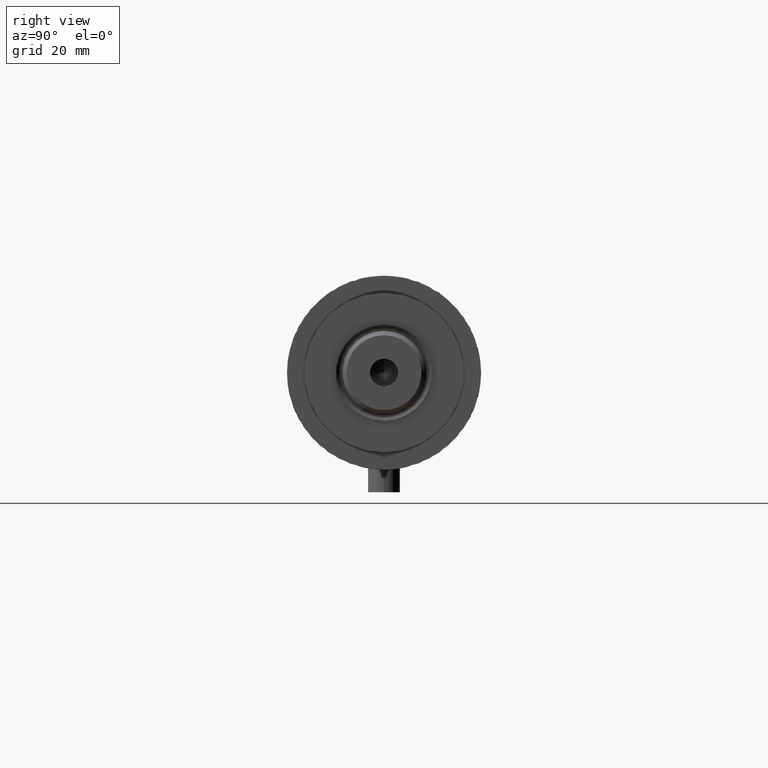
[diagram: clean part render]
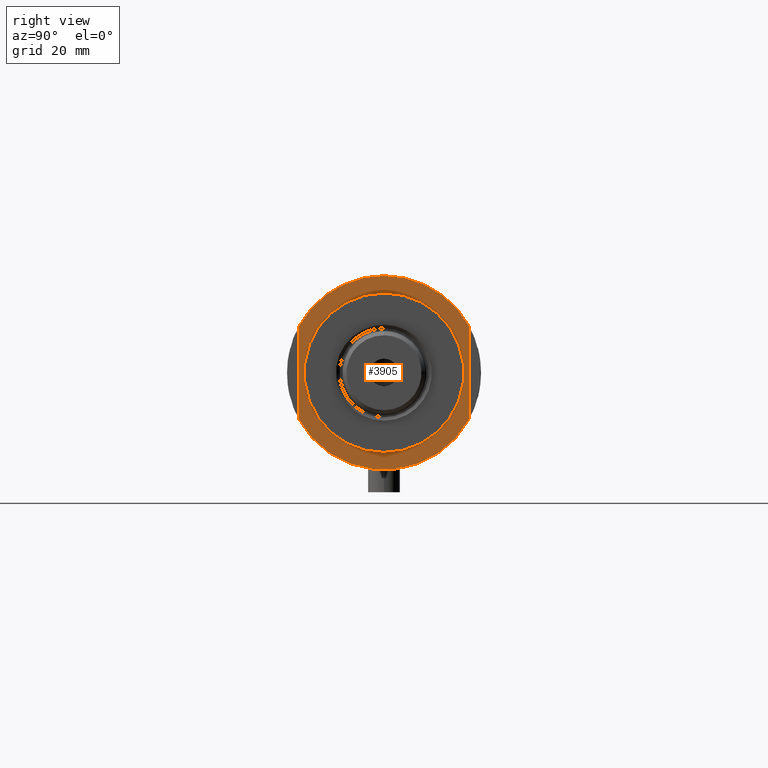
[diagram: same view with one face highlighted and labeled with its STEP entity id]
A machine part, right view. The second image highlights one B-rep face of the part: STEP entity #3905.
In plain terms, the highlighted planar face has unit normal (1, 0, -0).
Its self-contained STEP definition (entity closure, byte-faithful):
#27 = ORIENTED_EDGE ( 'NONE', *, *, #574, .T. ) ;
#46 = CARTESIAN_POINT ( 'NONE',  ( -36.50000000000000000, 0.000000000000000000, 25.19999999999999929 ) ) ;
#189 = ORIENTED_EDGE ( 'NONE', *, *, #1477, .T. ) ;
#274 = CARTESIAN_POINT ( 'NONE',  ( 0.000000000000000000, 0.000000000000000000, 25.19999999999999929 ) ) ;
#366 = CARTESIAN_POINT ( 'NONE',  ( 0.000000000000000000, 0.000000000000000000, 25.19999999999999929 ) ) ;
#506 = DIRECTION ( 'NONE',  ( -0.000000000000000000, -0.000000000000000000, -1.000000000000000000 ) ) ;
#538 = FACE_BOUND ( 'NONE', #649, .T. ) ;
#546 = EDGE_CURVE ( 'NONE', #3397, #3412, #4195, .T. ) ;
#574 = EDGE_CURVE ( 'NONE', #3397, #856, #3943, .T. ) ;
#639 = VERTEX_POINT ( 'NONE', #2262 ) ;
#649 = EDGE_LOOP ( 'NONE', ( #189, #2937 ) ) ;
#674 = DIRECTION ( 'NONE',  ( -1.000000000000000000, -0.000000000000000000, -0.000000000000000000 ) ) ;
#675 = DIRECTION ( 'NONE',  ( 1.000000000000000000, 0.000000000000000000, 0.000000000000000000 ) ) ;
#735 = ORIENTED_EDGE ( 'NONE', *, *, #3864, .T. ) ;
#792 = DIRECTION ( 'NONE',  ( 0.000000000000000000, 0.000000000000000000, 1.000000000000000000 ) ) ;
#856 = VERTEX_POINT ( 'NONE', #46 ) ;
#928 = DIRECTION ( 'NONE',  ( -0.000000000000000000, -0.000000000000000000, -1.000000000000000000 ) ) ;
#965 = VECTOR ( 'NONE', #2892, 1000.000000000000000 ) ;
#1202 = AXIS2_PLACEMENT_3D ( 'NONE', #274, #4123, #675 ) ;
#1261 = VECTOR ( 'NONE', #674, 1000.000000000000000 ) ;
#1273 = CARTESIAN_POINT ( 'NONE',  ( 0.000000000000000000, 0.000000000000000000, 25.19999999999999929 ) ) ;
#1287 = CARTESIAN_POINT ( 'NONE',  ( -30.00000000000000355, 3.673940397442059178E-15, 25.19999999999999929 ) ) ;
#1330 = VERTEX_POINT ( 'NONE', #1287 ) ;
#1362 = CARTESIAN_POINT ( 'NONE',  ( 30.00000000000000355, 0.000000000000000000, 25.19999999999999929 ) ) ;
#1477 = EDGE_CURVE ( 'NONE', #1743, #1330, #2139, .T. ) ;
#1546 = DIRECTION ( 'NONE',  ( 1.000000000000000000, 0.000000000000000000, 0.000000000000000000 ) ) ;
#1740 = CARTESIAN_POINT ( 'NONE',  ( -17.55704986607943141, 32.00000000000000000, 25.19999999999999929 ) ) ;
#1743 = VERTEX_POINT ( 'NONE', #1362 ) ;
#1814 = CARTESIAN_POINT ( 'NONE',  ( -17.55704986607943496, -32.00000000000000000, 25.19999999999999929 ) ) ;
#1882 = PLANE ( 'NONE',  #3811 ) ;
#1951 = FACE_OUTER_BOUND ( 'NONE', #3295, .T. ) ;
#1971 = EDGE_CURVE ( 'NONE', #1330, #1743, #3578, .T. ) ;
#2139 = CIRCLE ( 'NONE', #2213, 30.00000000000000355 ) ;
#2213 = AXIS2_PLACEMENT_3D ( 'NONE', #1273, #928, #4333 ) ;
#2221 = CARTESIAN_POINT ( 'NONE',  ( 17.55704986607943496, 32.00000000000000000, 25.19999999999999929 ) ) ;
#2262 = CARTESIAN_POINT ( 'NONE',  ( 17.55704986607943496, -32.00000000000000000, 25.19999999999999929 ) ) ;
#2277 = CARTESIAN_POINT ( 'NONE',  ( 0.000000000000000000, 0.000000000000000000, 25.19999999999999929 ) ) ;
#2404 = EDGE_CURVE ( 'NONE', #639, #2831, #2691, .T. ) ;
#2691 = LINE ( 'NONE', #4055, #1261 ) ;
#2799 = DIRECTION ( 'NONE',  ( 1.000000000000000000, 0.000000000000000000, 0.000000000000000000 ) ) ;
#2831 = VERTEX_POINT ( 'NONE', #1814 ) ;
#2892 = DIRECTION ( 'NONE',  ( 1.000000000000000000, 0.000000000000000000, 0.000000000000000000 ) ) ;
#2911 = ORIENTED_EDGE ( 'NONE', *, *, #546, .F. ) ;
#2937 = ORIENTED_EDGE ( 'NONE', *, *, #1971, .T. ) ;
#3109 = ORIENTED_EDGE ( 'NONE', *, *, #3595, .T. ) ;
#3130 = DIRECTION ( 'NONE',  ( 0.000000000000000000, 0.000000000000000000, 1.000000000000000000 ) ) ;
#3157 = CIRCLE ( 'NONE', #1202, 36.50000000000000000 ) ;
#3193 = CARTESIAN_POINT ( 'NONE',  ( 0.000000000000000000, 0.000000000000000000, 25.19999999999999929 ) ) ;
#3278 = CARTESIAN_POINT ( 'NONE',  ( -17.55704986607943496, 32.00000000000000000, 25.19999999999999929 ) ) ;
#3295 = EDGE_LOOP ( 'NONE', ( #4051, #735, #2911, #27, #3109 ) ) ;
#3296 = AXIS2_PLACEMENT_3D ( 'NONE', #3193, #792, #1546 ) ;
#3341 = DIRECTION ( 'NONE',  ( 0.000000000000000000, 0.000000000000000000, 1.000000000000000000 ) ) ;
#3354 = AXIS2_PLACEMENT_3D ( 'NONE', #3950, #506, #3996 ) ;
#3397 = VERTEX_POINT ( 'NONE', #3278 ) ;
#3412 = VERTEX_POINT ( 'NONE', #2221 ) ;
#3578 = CIRCLE ( 'NONE', #3354, 30.00000000000000355 ) ;
#3595 = EDGE_CURVE ( 'NONE', #856, #2831, #3157, .T. ) ;
#3643 = AXIS2_PLACEMENT_3D ( 'NONE', #366, #3130, #2799 ) ;
#3661 = DIRECTION ( 'NONE',  ( 1.000000000000000000, 0.000000000000000000, -0.000000000000000000 ) ) ;
#3811 = AXIS2_PLACEMENT_3D ( 'NONE', #2277, #3341, #3661 ) ;
#3864 = EDGE_CURVE ( 'NONE', #639, #3412, #4314, .T. ) ;
#3905 = ADVANCED_FACE ( 'NONE', ( #538, #1951 ), #1882, .T. ) ;
#3943 = CIRCLE ( 'NONE', #3643, 36.50000000000000000 ) ;
#3950 = CARTESIAN_POINT ( 'NONE',  ( 0.000000000000000000, 0.000000000000000000, 25.19999999999999929 ) ) ;
#3996 = DIRECTION ( 'NONE',  ( 1.000000000000000000, 0.000000000000000000, 0.000000000000000000 ) ) ;
#4051 = ORIENTED_EDGE ( 'NONE', *, *, #2404, .F. ) ;
#4055 = CARTESIAN_POINT ( 'NONE',  ( -17.55704986607943141, -32.00000000000000000, 25.19999999999999929 ) ) ;
#4123 = DIRECTION ( 'NONE',  ( 0.000000000000000000, 0.000000000000000000, 1.000000000000000000 ) ) ;
#4195 = LINE ( 'NONE', #1740, #965 ) ;
#4314 = CIRCLE ( 'NONE', #3296, 36.50000000000000000 ) ;
#4333 = DIRECTION ( 'NONE',  ( 1.000000000000000000, 0.000000000000000000, 0.000000000000000000 ) ) ;